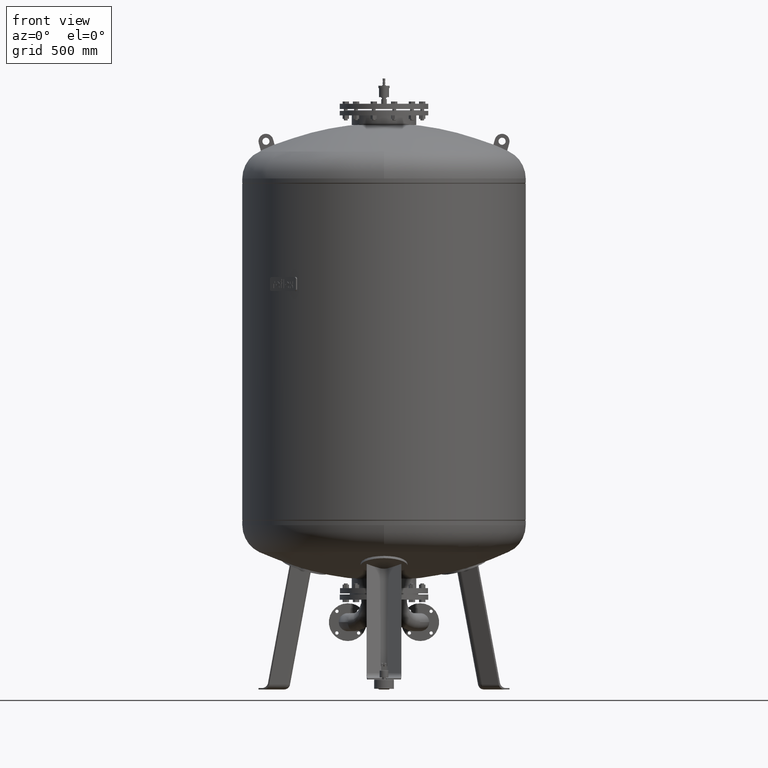
[diagram: clean part render]
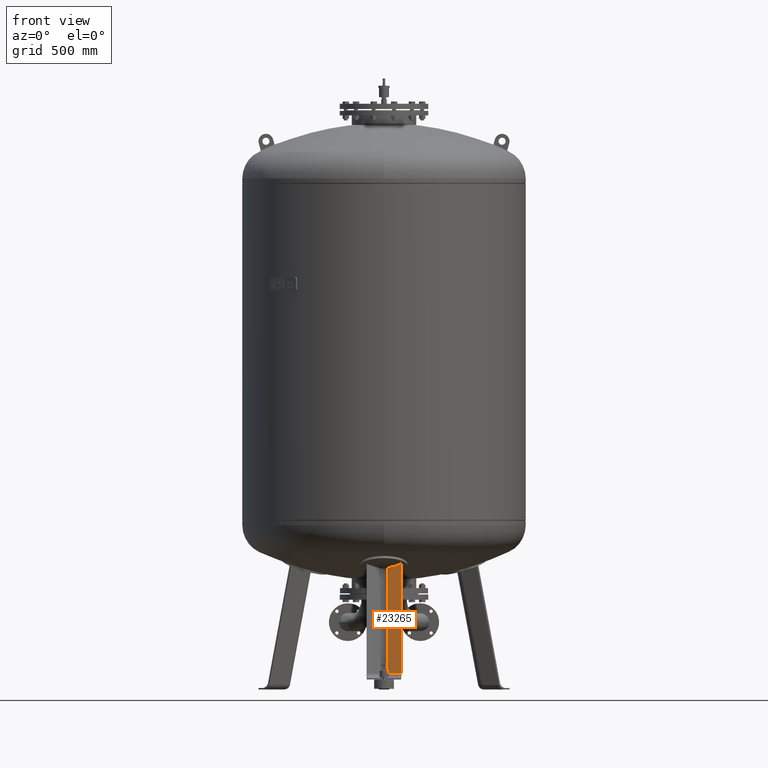
[diagram: same view with one face highlighted and labeled with its STEP entity id]
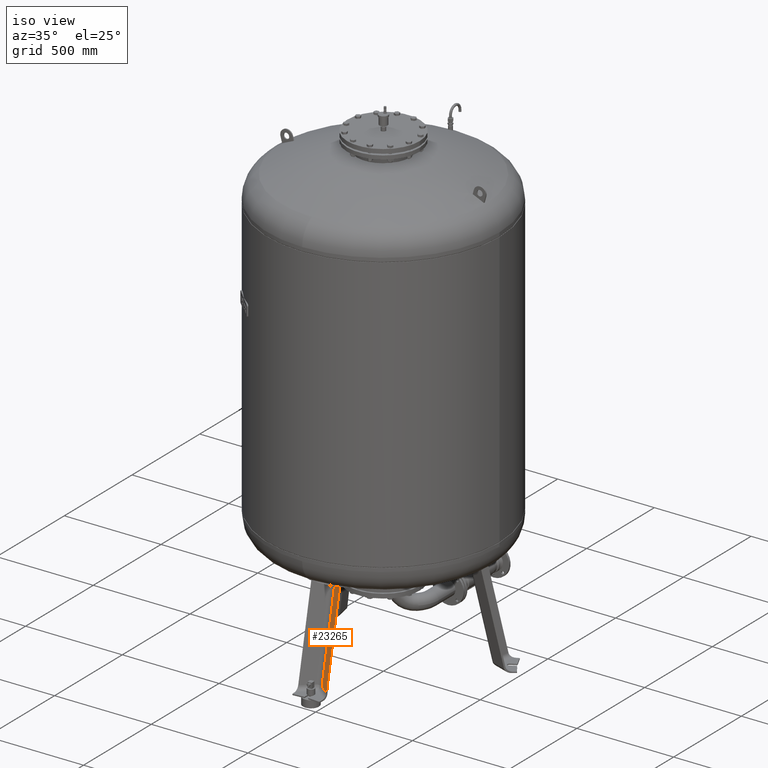
[diagram: same view with one face highlighted and labeled with its STEP entity id]
A machine part, front view. The second image highlights one B-rep face of the part: STEP entity #23265.
A second angle (iso view) of the same face is appended — the face is thin or edge-on in the first view.
In plain terms, the highlighted planar face has unit normal (-0.6455, -0.7471, 0.1588).
Its self-contained STEP definition (entity closure, byte-faithful):
#22887=CARTESIAN_POINT('',(16.136450826554576,-476.124712592942840,69.029948423057277));
#22888=VERTEX_POINT('',#22887);
#22897=CARTESIAN_POINT('',(72.837866169855033,-525.111649658243320,69.029948423057277));
#22898=VERTEX_POINT('',#22897);
#22906=CARTESIAN_POINT('',(72.837866169855033,-525.111649658243320,69.029948423057277));
#22907=DIRECTION('',(-0.756707249513242,0.653753882232530,0.0));
#22908=VECTOR('',#22907,74.931772333057609);
#22909=LINE('',#22906,#22908);
#22910=EDGE_CURVE('',#22898,#22888,#22909,.T.);
#23100=CARTESIAN_POINT('',(16.136450826554661,-381.687895827731270,513.320240019970470));
#23101=VERTEX_POINT('',#23100);
#23131=CARTESIAN_POINT('',(72.837866169855147,-426.744909196530440,531.809077370483240));
#23132=VERTEX_POINT('',#23131);
#23133=CARTESIAN_POINT('',(-44.843693232683513,-123.286972658331760,1481.144501634031000));
#23134=DIRECTION('',(0.645458033062182,0.747104967402682,-0.158802063077709));
#23135=DIRECTION('',(5.092368E-017,0.207911690817760,0.978147600733805));
#23136=AXIS2_PLACEMENT_3D('',#23133,#23134,#23135);
#23137=CIRCLE('',#23136,1003.580298946269700);
#23138=EDGE_CURVE('',#23132,#23101,#23137,.T.);
#23235=CARTESIAN_POINT('',(72.837866169855033,-525.111649658243320,69.029948423057277));
#23236=DIRECTION('',(2.402928E-016,0.207911690817760,0.978147600733806));
#23237=VECTOR('',#23236,473.117889979231620);
#23238=LINE('',#23235,#23237);
#23239=EDGE_CURVE('',#22898,#23132,#23238,.T.);
#23249=CARTESIAN_POINT('',(72.837866169855033,-543.297400540858230,-16.527282742766886));
#23250=DIRECTION('',(-0.645458033062182,-0.747104967402682,0.158802063077709));
#23251=DIRECTION('',(1.475869E-016,0.207911690817760,0.978147600733806));
#23252=AXIS2_PLACEMENT_3D('',#23249,#23250,#23251);
#23253=PLANE('',#23252);
#23254=CARTESIAN_POINT('',(16.136450826554576,-476.124712592942840,69.029948423057277));
#23255=DIRECTION('',(1.877193E-016,0.207911690817760,0.978147600733806));
#23256=VECTOR('',#23255,454.216001003945620);
#23257=LINE('',#23254,#23256);
#23258=EDGE_CURVE('',#22888,#23101,#23257,.T.);
#23259=ORIENTED_EDGE('',*,*,#23258,.F.);
#23260=ORIENTED_EDGE('',*,*,#22910,.F.);
#23261=ORIENTED_EDGE('',*,*,#23239,.T.);
#23262=ORIENTED_EDGE('',*,*,#23138,.T.);
#23263=EDGE_LOOP('',(#23259,#23260,#23261,#23262));
#23264=FACE_OUTER_BOUND('',#23263,.T.);
#23265=ADVANCED_FACE('',(#23264),#23253,.T.);